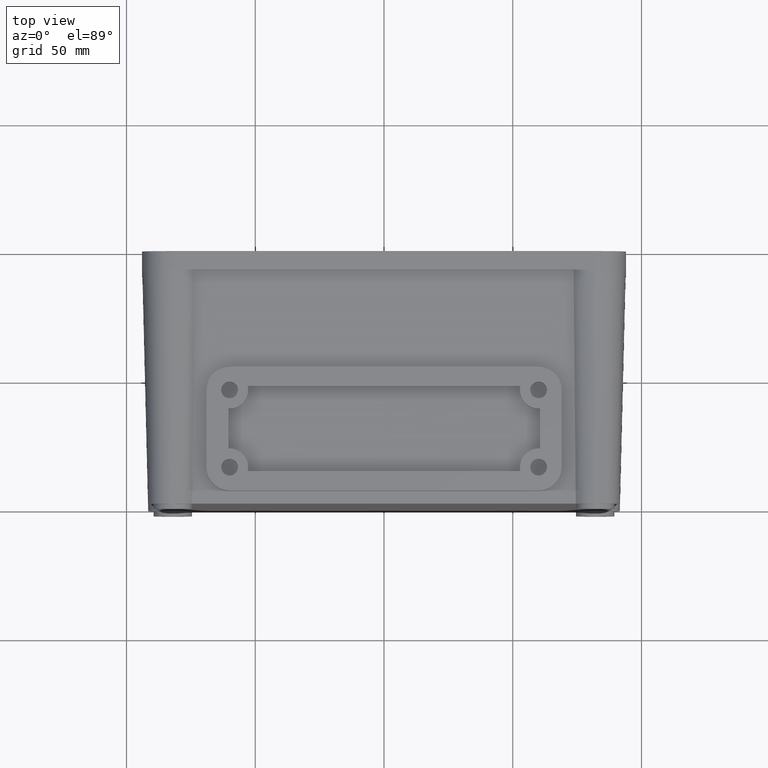
[diagram: clean part render]
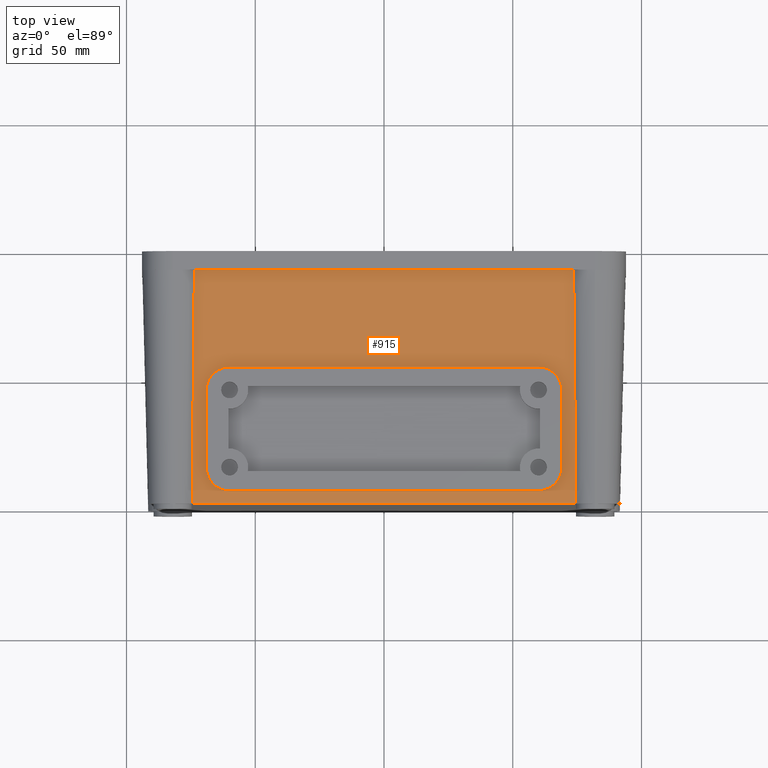
[diagram: same view with one face highlighted and labeled with its STEP entity id]
A machine part, top view. The second image highlights one B-rep face of the part: STEP entity #915.
In plain terms, the highlighted planar face has unit normal (0, -0.0262, 0.9997).
Its self-contained STEP definition (entity closure, byte-faithful):
#72 = VERTEX_POINT ( 'NONE', #11581 ) ;
#73 = VERTEX_POINT ( 'NONE', #11580 ) ;
#333 = EDGE_CURVE ( 'NONE', #72, #73, #12072, .T. ) ;
#826 = VERTEX_POINT ( 'NONE', #13191 ) ;
#831 = ORIENTED_EDGE ( 'NONE', *, *, #902, .F. ) ;
#832 = VERTEX_POINT ( 'NONE', #13153 ) ;
#840 = EDGE_CURVE ( 'NONE', #905, #826, #13181, .T. ) ;
#844 = ORIENTED_EDGE ( 'NONE', *, *, #845, .F. ) ;
#845 = EDGE_CURVE ( 'NONE', #832, #905, #13235, .T. ) ;
#848 = ORIENTED_EDGE ( 'NONE', *, *, #914, .F. ) ;
#854 = VERTEX_POINT ( 'NONE', #13301 ) ;
#855 = ORIENTED_EDGE ( 'NONE', *, *, #866, .T. ) ;
#856 = VERTEX_POINT ( 'NONE', #13300 ) ;
#862 = ORIENTED_EDGE ( 'NONE', *, *, #333, .F. ) ;
#864 = EDGE_LOOP ( 'NONE', ( #865, #868, #855, #862 ) ) ;
#865 = ORIENTED_EDGE ( 'NONE', *, *, #872, .F. ) ;
#866 = EDGE_CURVE ( 'NONE', #869, #73, #13289, .T. ) ;
#867 = EDGE_CURVE ( 'NONE', #869, #856, #12144, .T. ) ;
#868 = ORIENTED_EDGE ( 'NONE', *, *, #867, .F. ) ;
#869 = VERTEX_POINT ( 'NONE', #13282 ) ;
#871 = VERTEX_POINT ( 'NONE', #13283 ) ;
#872 = EDGE_CURVE ( 'NONE', #856, #72, #12599, .T. ) ;
#877 = ORIENTED_EDGE ( 'NONE', *, *, #899, .F. ) ;
#886 = VERTEX_POINT ( 'NONE', #13369 ) ;
#899 = EDGE_CURVE ( 'NONE', #886, #912, #13388, .T. ) ;
#900 = EDGE_CURVE ( 'NONE', #871, #886, #13371, .T. ) ;
#901 = EDGE_CURVE ( 'NONE', #854, #908, #13379, .T. ) ;
#902 = EDGE_CURVE ( 'NONE', #912, #832, #13373, .T. ) ;
#904 = ORIENTED_EDGE ( 'NONE', *, *, #840, .F. ) ;
#905 = VERTEX_POINT ( 'NONE', #13374 ) ;
#906 = ORIENTED_EDGE ( 'NONE', *, *, #916, .F. ) ;
#908 = VERTEX_POINT ( 'NONE', #13419 ) ;
#911 = ORIENTED_EDGE ( 'NONE', *, *, #900, .F. ) ;
#912 = VERTEX_POINT ( 'NONE', #13389 ) ;
#913 = ORIENTED_EDGE ( 'NONE', *, *, #901, .F. ) ;
#914 = EDGE_CURVE ( 'NONE', #826, #854, #13412, .T. ) ;
#915 = ADVANCED_FACE ( 'NONE', ( #13361, #13410 ), #13417, .T. ) ;
#916 = EDGE_CURVE ( 'NONE', #908, #871, #13432, .T. ) ;
#924 = EDGE_LOOP ( 'NONE', ( #877, #911, #906, #913, #848, #904, #844, #831 ) ) ;
#11580 = CARTESIAN_POINT ( 'NONE',  ( 74.49968595073751500, 0.0000000000000000000, 88.00000000000000000 ) ) ;
#11581 = CARTESIAN_POINT ( 'NONE',  ( 73.65600383029077100, 90.80000000000001100, 90.37768167848217600 ) ) ;
#12066 = CARTESIAN_POINT ( 'NONE',  ( 74.49968595073751500, 0.0000000000000000000, 88.00000000000000000 ) ) ;
#12067 = CARTESIAN_POINT ( 'NONE',  ( 74.20326631005248400, 28.64116824331251400, 88.74999538526925800 ) ) ;
#12068 = CARTESIAN_POINT ( 'NONE',  ( 73.92176706703327200, 58.93709445377714900, 89.54332213288238100 ) ) ;
#12069 = CARTESIAN_POINT ( 'NONE',  ( 73.65600383029077100, 90.80000000000001100, 90.37768167848217600 ) ) ;
#12072 =( BOUNDED_CURVE ( )  B_SPLINE_CURVE ( 3, ( #12069, #12068, #12067, #12066 ),
 .UNSPECIFIED., .F., .F. ) 
 B_SPLINE_CURVE_WITH_KNOTS ( ( 4, 4 ),
 ( 2.296409787400353100, 2.404077311139501700 ),
 .UNSPECIFIED. ) 
 CURVE ( )  GEOMETRIC_REPRESENTATION_ITEM ( )  RATIONAL_B_SPLINE_CURVE ( ( 1.000000000000000000, 0.9990342086393544400, 0.9990342086393544400, 1.000000000000000000 ) ) 
 REPRESENTATION_ITEM ( '' )  );
#12126 = CARTESIAN_POINT ( 'NONE',  ( -83.00000000000001400, 90.80000000000001100, 90.37768167848217600 ) ) ;
#12136 = VECTOR ( 'NONE', #13065, 1000.000000000000000 ) ;
#12144 =( BOUNDED_CURVE ( )  B_SPLINE_CURVE ( 3, ( #12837, #12836, #12835, #12374 ),
 .UNSPECIFIED., .F., .T. ) 
 B_SPLINE_CURVE_WITH_KNOTS ( ( 4, 4 ),
 ( 3.879107996040084500, 3.986775519779233200 ),
 .UNSPECIFIED. ) 
 CURVE ( )  GEOMETRIC_REPRESENTATION_ITEM ( )  RATIONAL_B_SPLINE_CURVE ( ( 1.000000000000000000, 0.9990342086393544400, 0.9990342086393544400, 1.000000000000000000 ) ) 
 REPRESENTATION_ITEM ( '' )  );
#12374 = CARTESIAN_POINT ( 'NONE',  ( -73.65600383029077100, 90.80000000000001100, 90.37768167848217600 ) ) ;
#12599 = LINE ( 'NONE', #12126, #12136 ) ;
#12835 = CARTESIAN_POINT ( 'NONE',  ( -73.92176706703328600, 58.93709445377703600, 89.54332213288238100 ) ) ;
#12836 = CARTESIAN_POINT ( 'NONE',  ( -74.20326631005248400, 28.64116824331227900, 88.74999538526925800 ) ) ;
#12837 = CARTESIAN_POINT ( 'NONE',  ( -74.49968595073751500, 0.0000000000000000000, 88.00000000000000000 ) ) ;
#13065 = DIRECTION ( 'NONE',  ( 1.000000000000000000, -0.0000000000000000000, -0.0000000000000000000 ) ) ;
#13153 = CARTESIAN_POINT ( 'NONE',  ( 60.00000000000001400, 4.999999999999995600, 88.13092960787116700 ) ) ;
#13180 = CARTESIAN_POINT ( 'NONE',  ( 69.00000000000000000, -13042.32199304607600, -253.5252207900384700 ) ) ;
#13181 = LINE ( 'NONE', #13180, #13248 ) ;
#13191 = CARTESIAN_POINT ( 'NONE',  ( 69.00000000000000000, 44.00000000000000000, 89.15218054903562000 ) ) ;
#13228 = CARTESIAN_POINT ( 'NONE',  ( 69.00000000000000000, 13.99999999999967300, 88.36660290181605100 ) ) ;
#13229 = CARTESIAN_POINT ( 'NONE',  ( 68.99999999999701600, 8.727922061355112500, 88.22854868259115300 ) ) ;
#13230 = CARTESIAN_POINT ( 'NONE',  ( 65.27207793863976800, 4.999999999999994700, 88.13092960787648200 ) ) ;
#13231 = CARTESIAN_POINT ( 'NONE',  ( 60.00000000000001400, 4.999999999999995600, 88.13092960787116700 ) ) ;
#13235 =( BOUNDED_CURVE ( )  B_SPLINE_CURVE ( 3, ( #13231, #13230, #13229, #13228 ),
 .UNSPECIFIED., .F., .F. ) 
 B_SPLINE_CURVE_WITH_KNOTS ( ( 4, 4 ),
 ( 3.141592653589793100, 4.712388980384121200 ),
 .UNSPECIFIED. ) 
 CURVE ( )  GEOMETRIC_REPRESENTATION_ITEM ( )  RATIONAL_B_SPLINE_CURVE ( ( 1.000000000000000000, 0.8047378541244990500, 0.8047378541244990500, 1.000000000000000000 ) ) 
 REPRESENTATION_ITEM ( '' )  );
#13247 = DIRECTION ( 'NONE',  ( -0.0000000000000000000, 0.9996573249755573700, 0.02617694830787321200 ) ) ;
#13248 = VECTOR ( 'NONE', #13247, 999.9999999999998900 ) ;
#13280 = DIRECTION ( 'NONE',  ( 1.000000000000000000, 0.0000000000000000000, 0.0000000000000000000 ) ) ;
#13281 = VECTOR ( 'NONE', #13280, 1000.000000000000000 ) ;
#13282 = CARTESIAN_POINT ( 'NONE',  ( -74.49968595073751500, 0.0000000000000000000, 88.00000000000000000 ) ) ;
#13283 = CARTESIAN_POINT ( 'NONE',  ( -69.00000000000000000, 44.00000000000113000, 89.15218054890056000 ) ) ;
#13288 = CARTESIAN_POINT ( 'NONE',  ( -83.00000000000001400, 0.0000000000000000000, 88.00000000000000000 ) ) ;
#13289 = LINE ( 'NONE', #13288, #13281 ) ;
#13300 = CARTESIAN_POINT ( 'NONE',  ( -73.65600383029077100, 90.80000000000001100, 90.37768167848217600 ) ) ;
#13301 = CARTESIAN_POINT ( 'NONE',  ( 60.00000000000002800, 53.00000000000000700, 89.38785384316689400 ) ) ;
#13361 = FACE_BOUND ( 'NONE', #924, .T. ) ;
#13369 = CARTESIAN_POINT ( 'NONE',  ( -69.00000000000000000, 13.99999999999999800, 88.36660290199915800 ) ) ;
#13370 = CARTESIAN_POINT ( 'NONE',  ( -69.00000000000000000, -13042.32199304607600, -253.5252207900384700 ) ) ;
#13371 = LINE ( 'NONE', #13370, #13387 ) ;
#13372 = CARTESIAN_POINT ( 'NONE',  ( -60.00000000000001400, 4.999999999999990200, 88.13092960787116700 ) ) ;
#13373 = LINE ( 'NONE', #13372, #13422 ) ;
#13374 = CARTESIAN_POINT ( 'NONE',  ( 69.00000000000000000, 13.99999999999967300, 88.36660290181605100 ) ) ;
#13376 = DIRECTION ( 'NONE',  ( -1.000000000000000000, -0.0000000000000000000, 0.0000000000000000000 ) ) ;
#13377 = VECTOR ( 'NONE', #13376, 1000.000000000000000 ) ;
#13378 = CARTESIAN_POINT ( 'NONE',  ( -60.00000000000001400, 53.00000000000000700, 89.38785384316361200 ) ) ;
#13379 = LINE ( 'NONE', #13378, #13377 ) ;
#13382 = DIRECTION ( 'NONE',  ( -0.0000000000000000000, -0.9996573249755573700, -0.02617694830787321200 ) ) ;
#13383 = CARTESIAN_POINT ( 'NONE',  ( -60.00000000000001400, 4.999999999999990200, 88.13092960787116700 ) ) ;
#13384 = CARTESIAN_POINT ( 'NONE',  ( -65.27207793864215500, 4.999999999999996400, 88.13092960787646700 ) ) ;
#13385 = CARTESIAN_POINT ( 'NONE',  ( -69.00000000000000000, 8.727922061357853400, 88.22854868259125300 ) ) ;
#13386 = CARTESIAN_POINT ( 'NONE',  ( -69.00000000000000000, 13.99999999999999800, 88.36660290199915800 ) ) ;
#13387 = VECTOR ( 'NONE', #13382, 999.9999999999998900 ) ;
#13388 =( BOUNDED_CURVE ( )  B_SPLINE_CURVE ( 3, ( #13386, #13385, #13384, #13383 ),
 .UNSPECIFIED., .F., .T. ) 
 B_SPLINE_CURVE_WITH_KNOTS ( ( 4, 4 ),
 ( 1.570796326794896300, 3.141592653589793100 ),
 .UNSPECIFIED. ) 
 CURVE ( )  GEOMETRIC_REPRESENTATION_ITEM ( )  RATIONAL_B_SPLINE_CURVE ( ( 1.000000000000000000, 0.8047378541243649400, 0.8047378541243649400, 1.000000000000000000 ) ) 
 REPRESENTATION_ITEM ( '' )  );
#13389 = CARTESIAN_POINT ( 'NONE',  ( -60.00000000000001400, 4.999999999999990200, 88.13092960787116700 ) ) ;
#13405 = CARTESIAN_POINT ( 'NONE',  ( 60.00000000000002800, 53.00000000000000700, 89.38785384316689400 ) ) ;
#13406 = CARTESIAN_POINT ( 'NONE',  ( 65.27207793864215500, 53.00000000000000000, 89.38785384315829700 ) ) ;
#13407 = CARTESIAN_POINT ( 'NONE',  ( 69.00000000000000000, 49.27207793864213400, 89.29023476844354000 ) ) ;
#13408 = CARTESIAN_POINT ( 'NONE',  ( 69.00000000000000000, 44.00000000000000000, 89.15218054903562000 ) ) ;
#13410 = FACE_OUTER_BOUND ( 'NONE', #864, .T. ) ;
#13411 = AXIS2_PLACEMENT_3D ( 'NONE', #13437, #13436, #13435 ) ;
#13412 =( BOUNDED_CURVE ( )  B_SPLINE_CURVE ( 3, ( #13408, #13407, #13406, #13405 ),
 .UNSPECIFIED., .F., .T. ) 
 B_SPLINE_CURVE_WITH_KNOTS ( ( 4, 4 ),
 ( 4.712388980384689700, 6.283185307179584500 ),
 .UNSPECIFIED. ) 
 CURVE ( )  GEOMETRIC_REPRESENTATION_ITEM ( )  RATIONAL_B_SPLINE_CURVE ( ( 1.000000000000000000, 0.8047378541243653800, 0.8047378541243653800, 1.000000000000000000 ) ) 
 REPRESENTATION_ITEM ( '' )  );
#13417 = PLANE ( 'NONE',  #13411 ) ;
#13419 = CARTESIAN_POINT ( 'NONE',  ( -60.00000000000001400, 53.00000000000000700, 89.38785384316361200 ) ) ;
#13421 = DIRECTION ( 'NONE',  ( 1.000000000000000000, -0.0000000000000000000, -0.0000000000000000000 ) ) ;
#13422 = VECTOR ( 'NONE', #13421, 1000.000000000000000 ) ;
#13426 = CARTESIAN_POINT ( 'NONE',  ( -69.00000000000000000, 44.00000000000113000, 89.15218054890056000 ) ) ;
#13427 = CARTESIAN_POINT ( 'NONE',  ( -69.00000000000140700, 49.27207793864086200, 89.29023476844351100 ) ) ;
#13428 = CARTESIAN_POINT ( 'NONE',  ( -65.27207793864327800, 53.00000000000000700, 89.38785384315829700 ) ) ;
#13429 = CARTESIAN_POINT ( 'NONE',  ( -60.00000000000001400, 53.00000000000000700, 89.38785384316361200 ) ) ;
#13432 =( BOUNDED_CURVE ( )  B_SPLINE_CURVE ( 3, ( #13429, #13428, #13427, #13426 ),
 .UNSPECIFIED., .F., .F. ) 
 B_SPLINE_CURVE_WITH_KNOTS ( ( 4, 4 ),
 ( 0.0000000000000000000, 1.570796326795163700 ),
 .UNSPECIFIED. ) 
 CURVE ( )  GEOMETRIC_REPRESENTATION_ITEM ( )  RATIONAL_B_SPLINE_CURVE ( ( 1.000000000000000000, 0.8047378541243019900, 0.8047378541243019900, 1.000000000000000000 ) ) 
 REPRESENTATION_ITEM ( '' )  );
#13435 = DIRECTION ( 'NONE',  ( 0.0000000000000000000, -0.9996573249755572600, -0.02617694830787320800 ) ) ;
#13436 = DIRECTION ( 'NONE',  ( 0.0000000000000000000, -0.02617694830787321200, 0.9996573249755573700 ) ) ;
#13437 = CARTESIAN_POINT ( 'NONE',  ( -83.00000000000001400, 0.0000000000000000000, 88.00000000000000000 ) ) ;